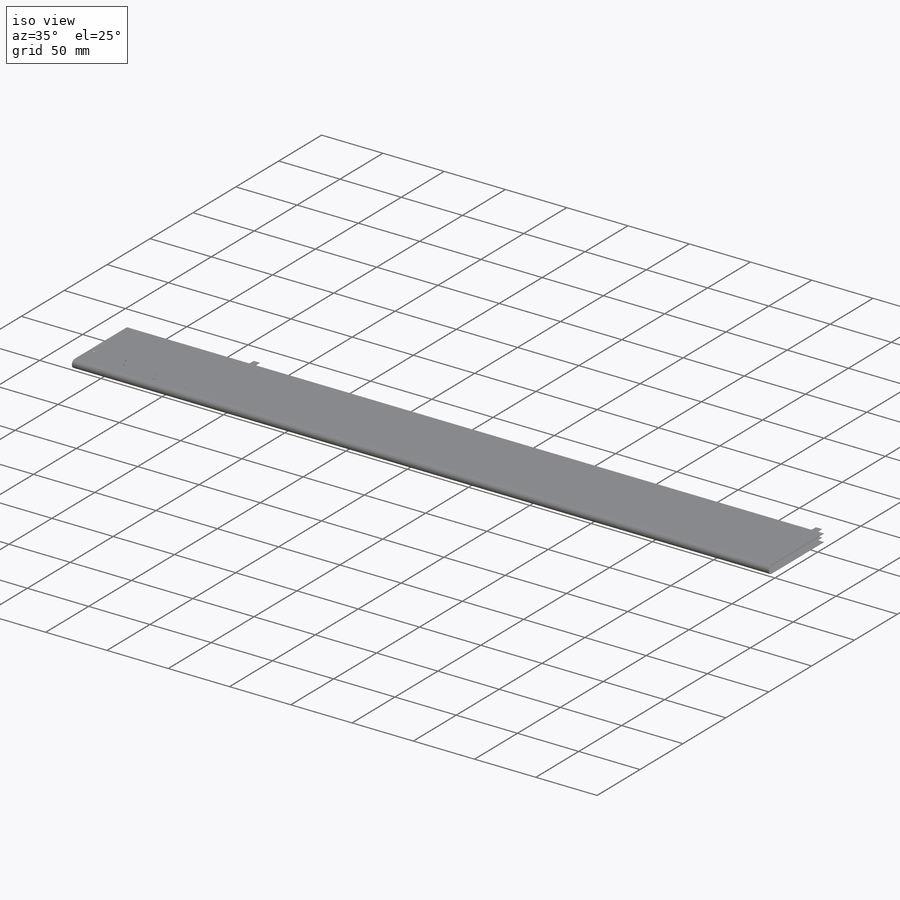
[diagram: iso view]
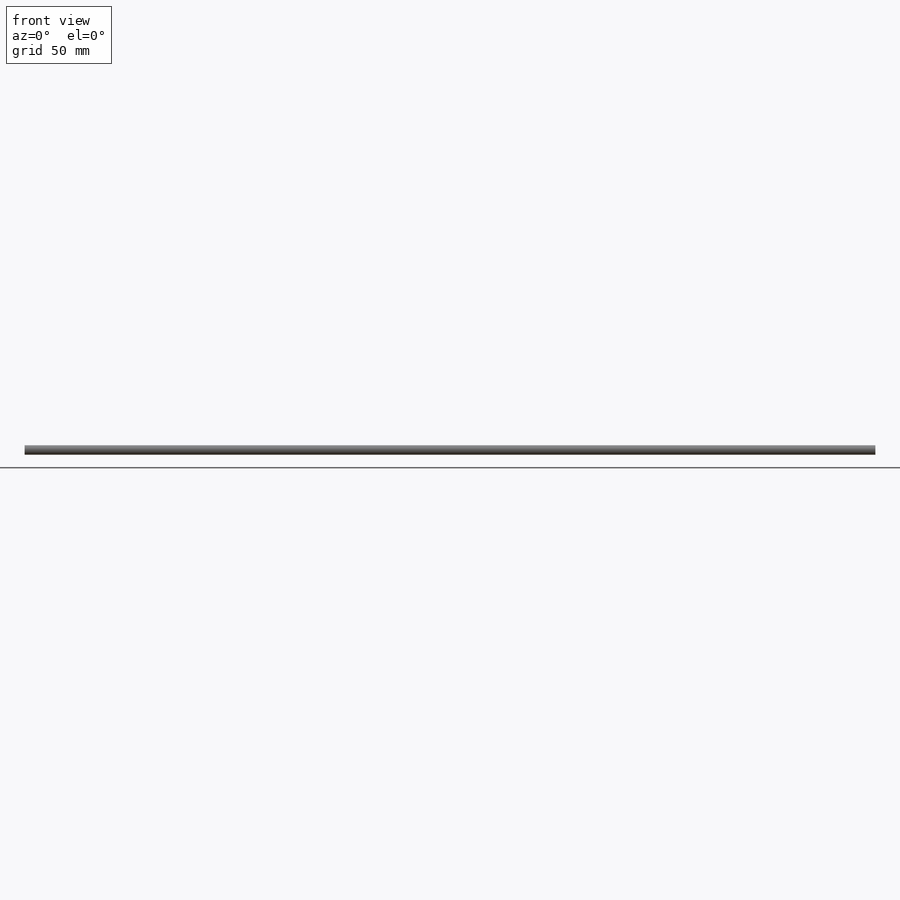
[diagram: front view]
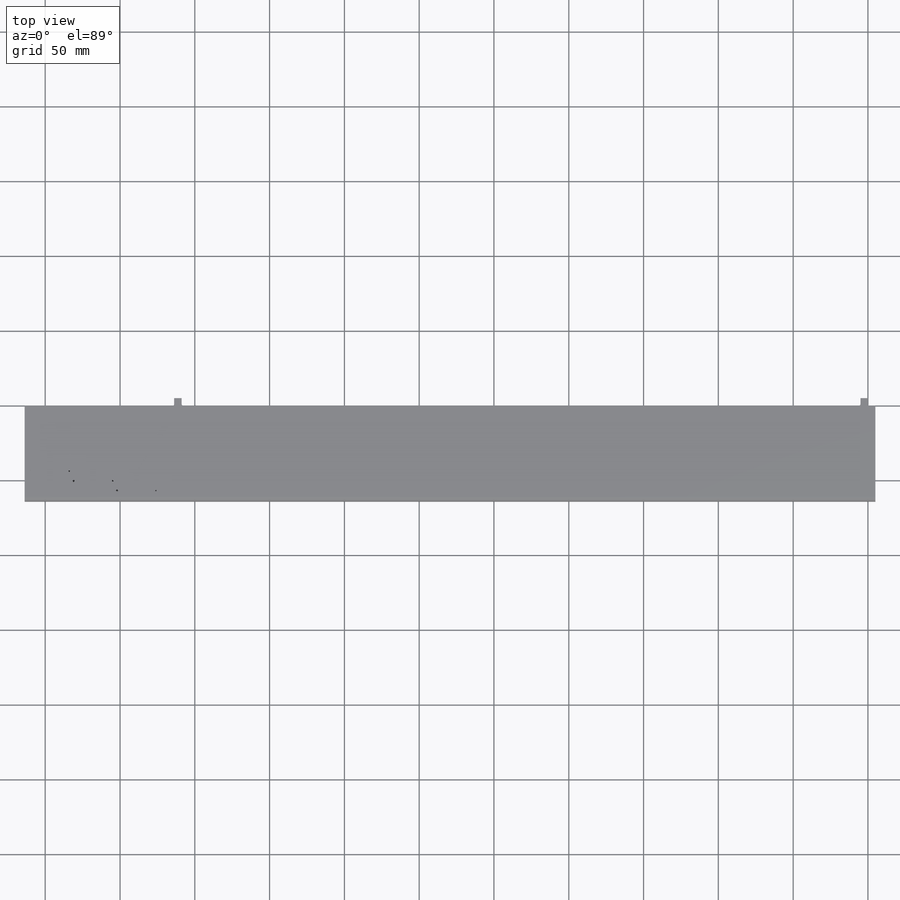
[diagram: top view]
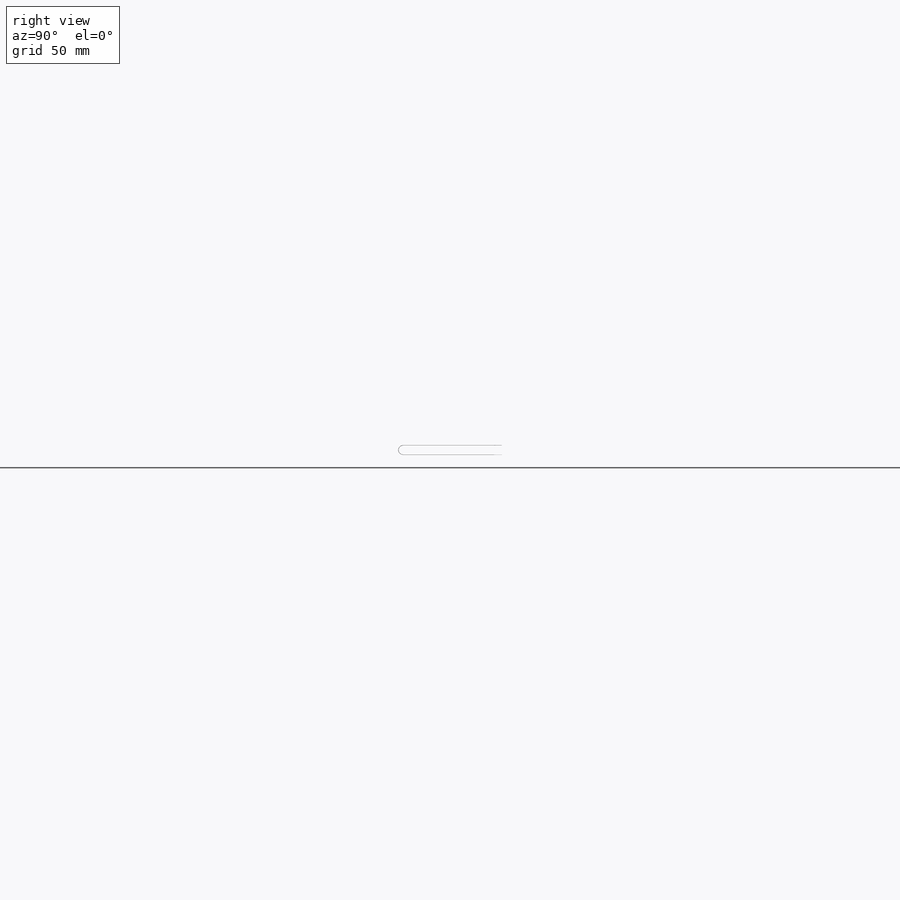
[diagram: right view]
SOLIDWORKS PART (.sldprt)
format: sldprt  version: not decoded by parser v0  size: 280,064 bytes
history: native  units: mm
features: sketch x4, extrude x2, cut_extrude x2, material x1 (+11 scaffold rows collapsed)
feature tree (20):
  scaffold x11  (default folders/planes/origin — collapsed)
  material  "Kapton"
  sketch  "Sketch1"  dims[c1.D4=3.396mm c1.D6=3.125mm c1.D7=3.35mm c2.D6=3.5mm c2.D7=~3.21256mm c2.D8=3.05mm c2.D2=61.0mm c2.D3=5.0mm c2.D4=6.1mm c2.D5=61.0mm c3.D6=0.35mm c3.D1=6.1mm c3.D4=~0.16256mm c4.D6=~0.16256mm c4.D7=0.025mm c4.D8=~0.16256mm c4.D1=~0.16256mm c5.D7=~0.16256mm]
  extrude  "Boss-Extrude1"  Depth=563.8mm
  sketch  "Sketch2"  dims[D7=1.0mm D1=5.0mm D2=5.0mm D3=10.0mm D4=453.8mm D5=5.0mm D6=5.0mm]
  cut_extrude  "Cut-Extrude1"  [1 undecoded]
  sketch  "Sketch3"  dims[c1.D3=~3.154643mm c1.D1=~0.23114mm c1.D2=~0.23114mm c2.D3=~0.11557mm c2.D1=~0.23114mm c2.D2=~0.23114mm c3.D3=~0.23114mm]
  extrude  "Boss-Extrude2"  Depth=91.3mm
  sketch  "Sketch4"  dims[D10=1.38mm D11=1.02mm D1=3.799mm D2=26.0mm D3=29.0mm D4=26.0mm D5=29.0mm D6=26.0mm D7=43.918mm D8=6.5mm D9=6.5mm]
  cut_extrude  "Cut-Extrude2"  Depth=2mm
decode coverage: 7 of 8 modeling features carry decoded parameters
note: ~ marks probable driven/reference dimensions
note: 1 parameter value undecoded
note: suppression state not decoded; provenance and decode notes live in map.json
